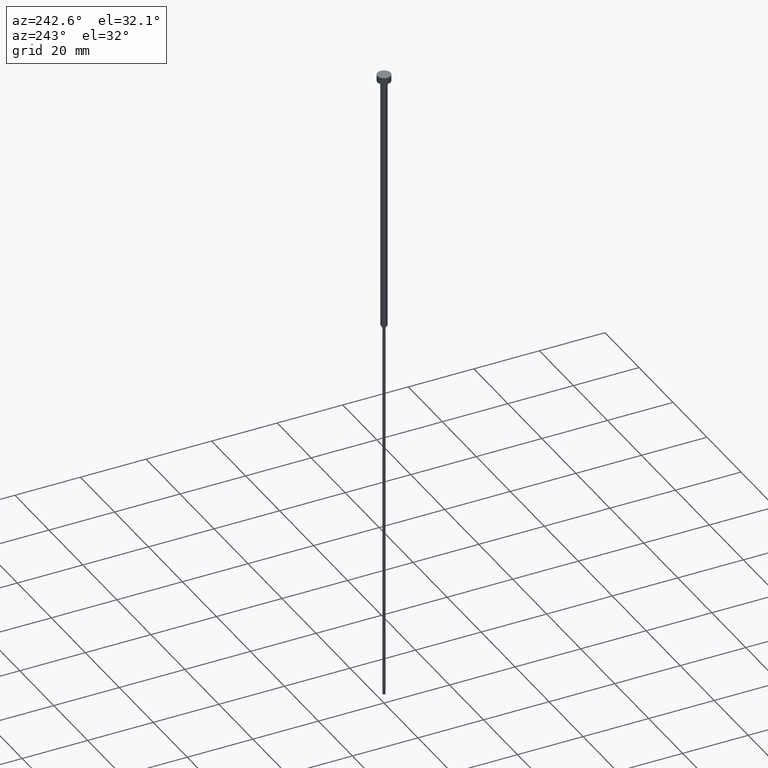
[diagram: clean part render]
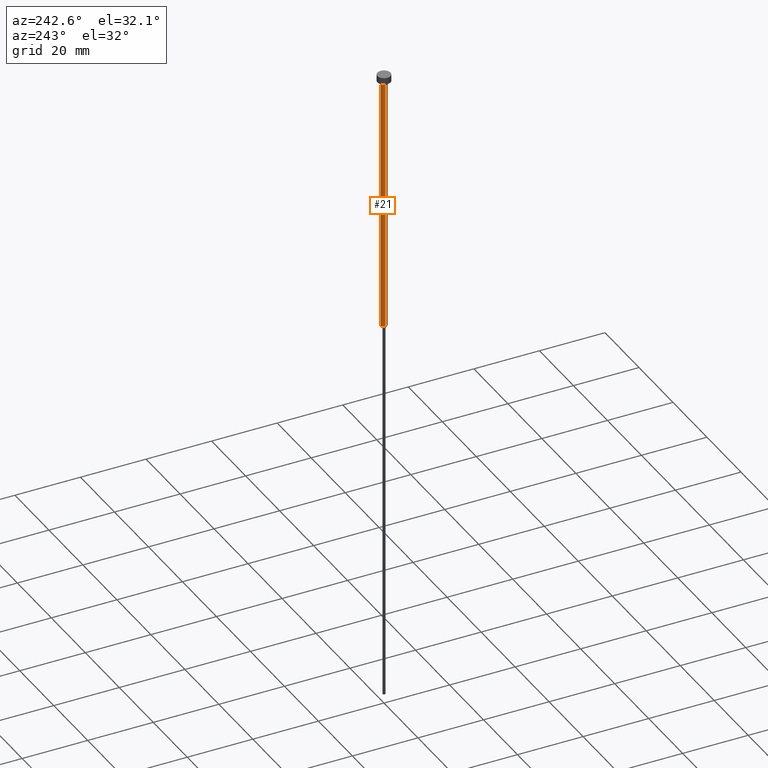
[diagram: same view with one face highlighted and labeled with its STEP entity id]
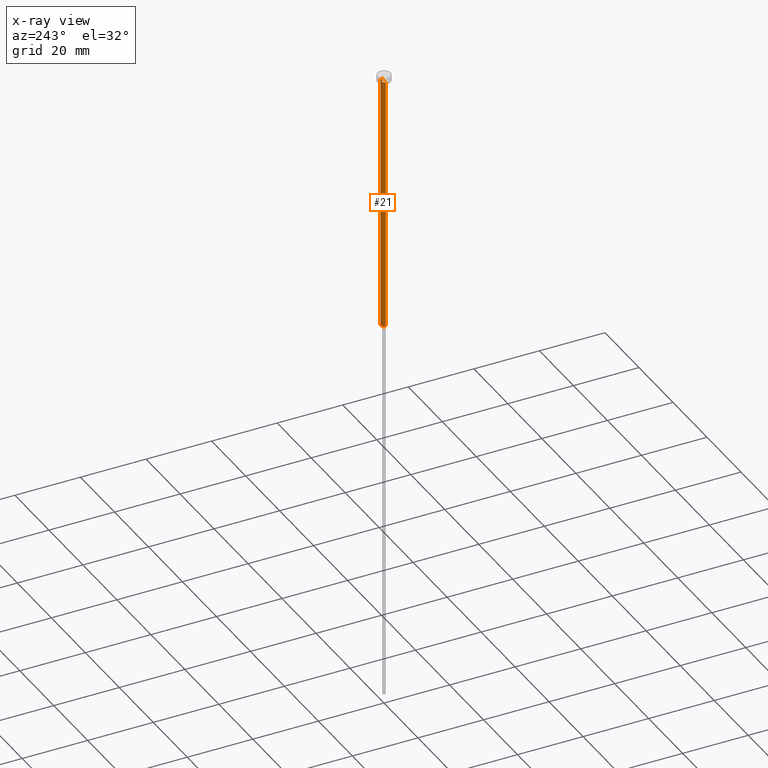
[diagram: x-ray of the same camera — body ghosted, the highlighted face saturated]
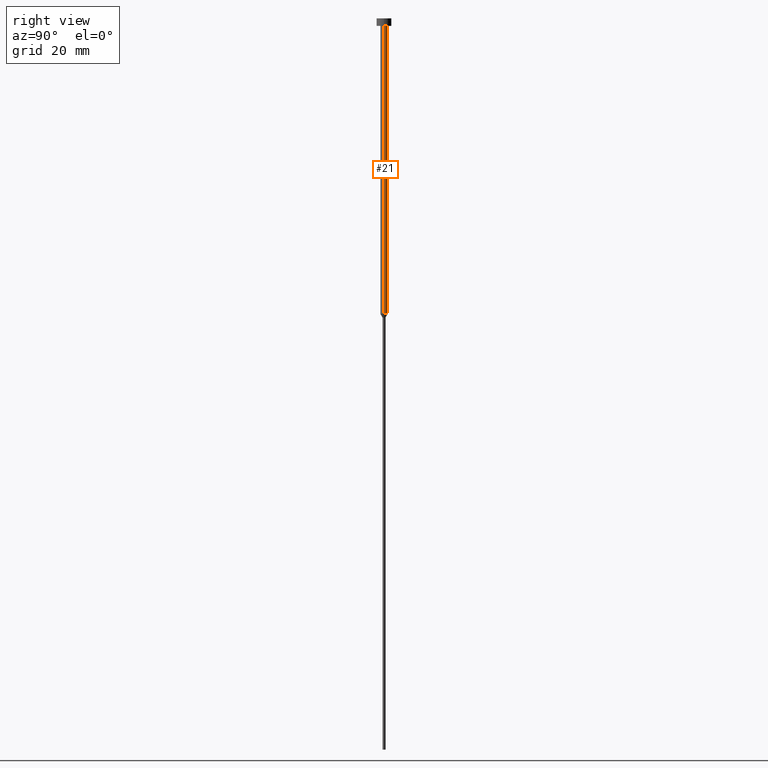
[diagram: same view with one face highlighted and labeled with its STEP entity id]
A machine part, auxiliary view. The second image highlights one B-rep face of the part: STEP entity #21.
The next image is the same camera in x-ray: the body ghosted, the highlighted face saturated — about 0% of this face is hidden behind the body in this view.
A second angle (right view) of the same face is appended — the face is thin or edge-on in the first view.
In plain terms, the highlighted cylindrical surface (edge-blend (fillet) strip) has radius 1 mm, axis along (-0, -0, 1).
Its self-contained STEP definition (entity closure, byte-faithful):
#1 = EDGE_LOOP ( 'NONE', ( #109, #166, #287, #326 ) ) ;
#5 = CARTESIAN_POINT ( 'NONE',  ( 0.000000000000000000, 0.000000000000000000, -2.000000000000000444 ) ) ;
#21 = ADVANCED_FACE ( 'NONE', ( #189 ), #105, .T. ) ;
#32 = CARTESIAN_POINT ( 'NONE',  ( -1.000000000000003553, 1.224646799147357398E-16, -2.000000000000000444 ) ) ;
#43 = DIRECTION ( 'NONE',  ( -0.000000000000000000, -0.000000000000000000, 1.000000000000000000 ) ) ;
#53 = VERTEX_POINT ( 'NONE', #269 ) ;
#56 = AXIS2_PLACEMENT_3D ( 'NONE', #132, #242, #79 ) ;
#57 = LINE ( 'NONE', #146, #206 ) ;
#66 = DIRECTION ( 'NONE',  ( -0.000000000000000000, -0.000000000000000000, 1.000000000000000000 ) ) ;
#69 = AXIS2_PLACEMENT_3D ( 'NONE', #313, #66, #258 ) ;
#79 = DIRECTION ( 'NONE',  ( 1.000000000000000000, 0.000000000000000000, 0.000000000000000000 ) ) ;
#82 = VERTEX_POINT ( 'NONE', #252 ) ;
#88 = EDGE_CURVE ( 'NONE', #82, #192, #195, .T. ) ;
#100 = CARTESIAN_POINT ( 'NONE',  ( 1.000000000000003331, 0.000000000000000000, 0.000000000000000000 ) ) ;
#104 = AXIS2_PLACEMENT_3D ( 'NONE', #5, #250, #254 ) ;
#105 = CYLINDRICAL_SURFACE ( 'NONE', #56, 1.000000000000003331 ) ;
#109 = ORIENTED_EDGE ( 'NONE', *, *, #306, .T. ) ;
#111 = CARTESIAN_POINT ( 'NONE',  ( 1.000000000000003109, 0.000000000000000000, -80.00000000000000000 ) ) ;
#117 = DIRECTION ( 'NONE',  ( -0.000000000000000000, -0.000000000000000000, 1.000000000000000000 ) ) ;
#129 = VERTEX_POINT ( 'NONE', #111 ) ;
#132 = CARTESIAN_POINT ( 'NONE',  ( 0.000000000000000000, 0.000000000000000000, 0.000000000000000000 ) ) ;
#146 = CARTESIAN_POINT ( 'NONE',  ( -1.000000000000003331, 1.224646799147357151E-16, 0.000000000000000000 ) ) ;
#149 = LINE ( 'NONE', #100, #238 ) ;
#157 = EDGE_CURVE ( 'NONE', #53, #192, #57, .T. ) ;
#166 = ORIENTED_EDGE ( 'NONE', *, *, #157, .T. ) ;
#189 = FACE_OUTER_BOUND ( 'NONE', #1, .T. ) ;
#192 = VERTEX_POINT ( 'NONE', #32 ) ;
#195 = CIRCLE ( 'NONE', #104, 1.000000000000003553 ) ;
#206 = VECTOR ( 'NONE', #117, 1000.000000000000000 ) ;
#238 = VECTOR ( 'NONE', #43, 1000.000000000000000 ) ;
#242 = DIRECTION ( 'NONE',  ( -0.000000000000000000, -0.000000000000000000, 1.000000000000000000 ) ) ;
#250 = DIRECTION ( 'NONE',  ( -0.000000000000000000, -0.000000000000000000, 1.000000000000000000 ) ) ;
#252 = CARTESIAN_POINT ( 'NONE',  ( 1.000000000000003553, 0.000000000000000000, -2.000000000000000444 ) ) ;
#254 = DIRECTION ( 'NONE',  ( 1.000000000000000000, 0.000000000000000000, 0.000000000000000000 ) ) ;
#258 = DIRECTION ( 'NONE',  ( 1.000000000000000000, 0.000000000000000000, 0.000000000000000000 ) ) ;
#269 = CARTESIAN_POINT ( 'NONE',  ( -1.000000000000003109, 1.224646799147356905E-16, -80.00000000000000000 ) ) ;
#287 = ORIENTED_EDGE ( 'NONE', *, *, #88, .F. ) ;
#297 = EDGE_CURVE ( 'NONE', #129, #82, #149, .T. ) ;
#306 = EDGE_CURVE ( 'NONE', #129, #53, #329, .T. ) ;
#313 = CARTESIAN_POINT ( 'NONE',  ( 0.000000000000000000, 0.000000000000000000, -80.00000000000000000 ) ) ;
#326 = ORIENTED_EDGE ( 'NONE', *, *, #297, .F. ) ;
#329 = CIRCLE ( 'NONE', #69, 1.000000000000003109 ) ;